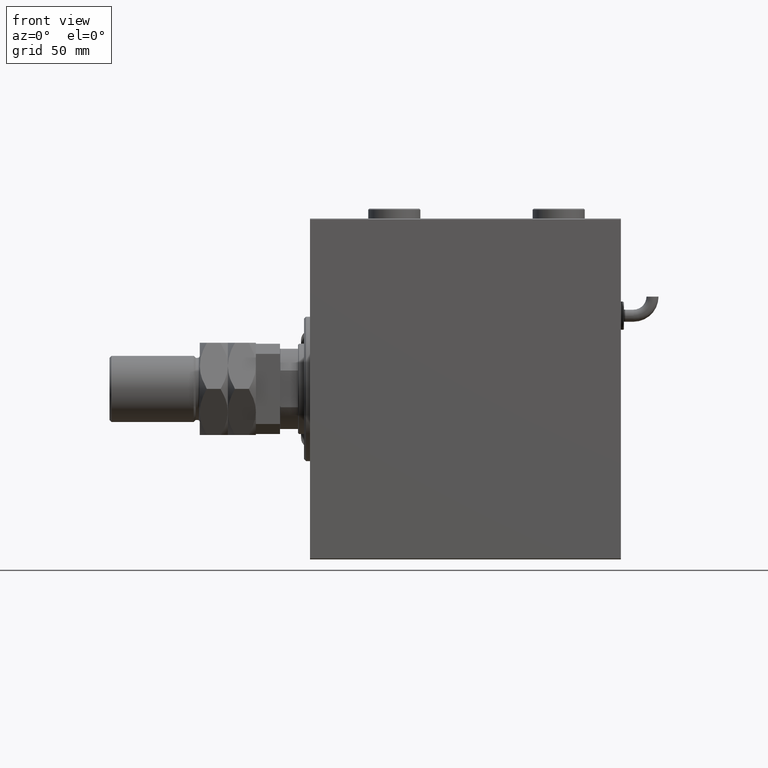
[diagram: clean part render]
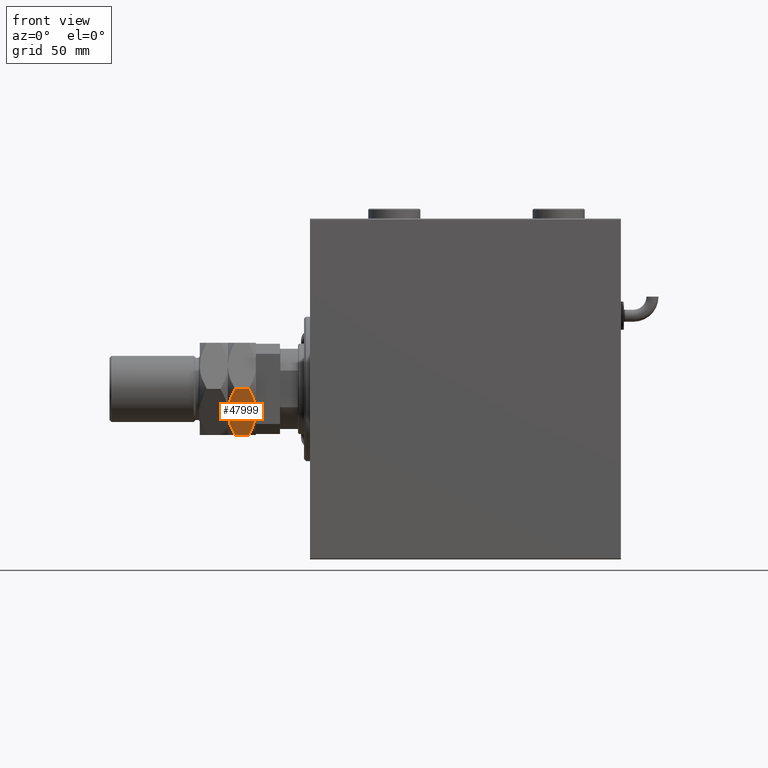
[diagram: same view with one face highlighted and labeled with its STEP entity id]
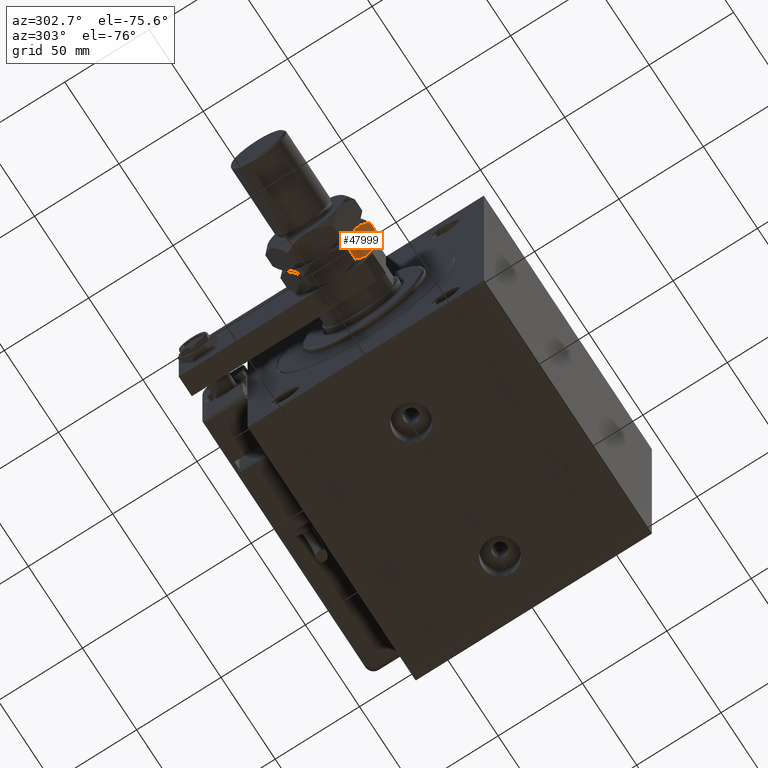
[diagram: same view with one face highlighted and labeled with its STEP entity id]
A machine part, front view. The second image highlights one B-rep face of the part: STEP entity #47999.
A second angle (auxiliary view) of the same face is appended — the face is thin or edge-on in the first view.
In plain terms, the highlighted planar face has unit normal (0, 0.866, 0.5).
Its self-contained STEP definition (entity closure, byte-faithful):
#112 = CARTESIAN_POINT ( 'NONE',  ( -3.738821091738284272E-15, -26.55811238272277919, 10.44188761727723680 ) ) ;
#1825 = ORIENTED_EDGE ( 'NONE', *, *, #31220, .F. ) ;
#2643 = CARTESIAN_POINT ( 'NONE',  ( -4.336808689942017736E-15, -26.55811238272277919, 14.00000000000000000 ) ) ;
#5033 = VECTOR ( 'NONE', #40968, 1000.000000000000000 ) ;
#5050 = CARTESIAN_POINT ( 'NONE',  ( -3.647547518302293401, -24.45219984114900313, 1.632211428131099540 ) ) ;
#5233 = EDGE_CURVE ( 'NONE', #39579, #5905, #60577, .T. ) ;
#5345 = CARTESIAN_POINT ( 'NONE',  ( -11.49999999999999467, -19.91858428704209416, 14.00000000000000000 ) ) ;
#5372 = CARTESIAN_POINT ( 'NONE',  ( -11.49999999999999289, -19.91858428704209061, 0.000000000000000000 ) ) ;
#5687 = CARTESIAN_POINT ( 'NONE',  ( -7.485235315951451085, -22.23650975811052888, 0.4351638361031562319 ) ) ;
#5905 = VERTEX_POINT ( 'NONE', #5345 ) ;
#8046 = CARTESIAN_POINT ( 'NONE',  ( -1.814388699413966632, -25.51057457870152234, 11.44392212070776260 ) ) ;
#9642 = ORIENTED_EDGE ( 'NONE', *, *, #43512, .F. ) ;
#9886 = PLANE ( 'NONE',  #32032 ) ;
#10172 = CARTESIAN_POINT ( 'NONE',  ( -9.475678885897350412, -21.08732662719550532, 0.1110987777879039046 ) ) ;
#10178 = CARTESIAN_POINT ( 'NONE',  ( -11.49999999999999467, -19.91858428704209416, 14.00000000000000000 ) ) ;
#11435 = CARTESIAN_POINT ( 'NONE',  ( -16.48674779066320895, -17.03948410772191124, 13.31372419864524481 ) ) ;
#11457 = EDGE_LOOP ( 'NONE', ( #13563, #16272, #1825, #13937, #30333, #9642 ) ) ;
#13485 = CARTESIAN_POINT ( 'NONE',  ( -3.676134192524339372, -24.43569531709166398, 12.30893151126141305 ) ) ;
#13563 = ORIENTED_EDGE ( 'NONE', *, *, #23466, .F. ) ;
#13937 = ORIENTED_EDGE ( 'NONE', *, *, #5233, .F. ) ;
#14406 = CARTESIAN_POINT ( 'NONE',  ( -22.09936078620807720, -13.79904048388689830, 3.038128090197237174 ) ) ;
#15603 = CARTESIAN_POINT ( 'NONE',  ( -15.51476468404853826, -17.60065881597367010, 13.56483616389684776 ) ) ;
#16272 = ORIENTED_EDGE ( 'NONE', *, *, #32144, .F. ) ;
#20392 = CARTESIAN_POINT ( 'NONE',  ( -23.00000000000000355, -13.27905619136139492, 10.44188761727722792 ) ) ;
#20704 = CARTESIAN_POINT ( 'NONE',  ( -12.51003418050899896, -19.33544078103450303, 13.97785245724466563 ) ) ;
#22743 = CARTESIAN_POINT ( 'NONE',  ( -3.738821091738284272E-15, -26.55811238272277919, 10.44188761727723680 ) ) ;
#22843 = VERTEX_POINT ( 'NONE', #57582 ) ;
#23466 = EDGE_CURVE ( 'NONE', #59356, #22843, #59572, .T. ) ;
#23855 = B_SPLINE_CURVE_WITH_KNOTS ( 'NONE', 3,
 ( #52746, #37446, #47633, #27839, #13485, #8046, #42214, #22743 ),
 .UNSPECIFIED., .F., .F.,
 ( 4, 2, 2, 4 ),
 ( 0.01376519981810311356, 0.02059946815584628999, 0.02401660232471787559, 0.02743373649358946814 ),
 .UNSPECIFIED. ) ;
#24842 = CARTESIAN_POINT ( 'NONE',  ( -4.401974839353477935E-15, -26.55811238272277919, 3.558112382722767197 ) ) ;
#27839 = CARTESIAN_POINT ( 'NONE',  ( -4.624867511207333415, -23.88794388016087211, 12.69215624893395855 ) ) ;
#28766 = CARTESIAN_POINT ( 'NONE',  ( -18.37513248879266925, -15.94922469392329489, 1.307843751066043225 ) ) ;
#29034 = FACE_OUTER_BOUND ( 'NONE', #11457, .T. ) ;
#29639 = CARTESIAN_POINT ( 'NONE',  ( -10.48996581949099216, -20.50172779304969595, 0.02214754275534232958 ) ) ;
#30333 = ORIENTED_EDGE ( 'NONE', *, *, #37066, .T. ) ;
#30861 = DIRECTION ( 'NONE',  ( -0.000000000000000000, -0.000000000000000000, -1.000000000000000000 ) ) ;
#31220 = EDGE_CURVE ( 'NONE', #5905, #45431, #23855, .T. ) ;
#32032 = AXIS2_PLACEMENT_3D ( 'NONE', #57776, #43402, #38946 ) ;
#32144 = EDGE_CURVE ( 'NONE', #45431, #59356, #46078, .T. ) ;
#33183 = CARTESIAN_POINT ( 'NONE',  ( -4.401974839353477935E-15, -26.55811238272277919, 3.558112382722767197 ) ) ;
#34439 = CARTESIAN_POINT ( 'NONE',  ( -8.974191784962716412, -21.37686033991523971, 0.1772566043169698236 ) ) ;
#35078 = CARTESIAN_POINT ( 'NONE',  ( -13.52432111410264426, -18.74984194688869721, 13.88890122221210177 ) ) ;
#37066 = EDGE_CURVE ( 'NONE', #39579, #47981, #59281, .T. ) ;
#37241 = B_SPLINE_CURVE_WITH_KNOTS ( 'NONE', 3,
 ( #48561, #47305, #53044, #28766, #42513, #48246, #14406, #47617 ),
 .UNSPECIFIED., .F., .F.,
 ( 4, 2, 2, 4 ),
 ( 0.01376519981810308754, 0.02059946815584627611, 0.02401660232471786866, 0.02743373649358946120 ),
 .UNSPECIFIED. ) ;
#37446 = CARTESIAN_POINT ( 'NONE',  ( -9.499688913091180353, -21.07346443153188886, 14.00000000000000178 ) ) ;
#38946 = DIRECTION ( 'NONE',  ( -0.8660254037844387076, 0.4999999999999997780, 0.000000000000000000 ) ) ;
#39264 = CARTESIAN_POINT ( 'NONE',  ( -23.00000000000000355, -13.27905619136139492, 3.558112382722778300 ) ) ;
#39579 = VERTEX_POINT ( 'NONE', #57256 ) ;
#39871 = CARTESIAN_POINT ( 'NONE',  ( -21.19663298550257480, -14.32023062262917890, 11.48306204854500479 ) ) ;
#40133 = CARTESIAN_POINT ( 'NONE',  ( -23.00000000000000355, -13.27905619136139492, 14.00000000000000000 ) ) ;
#40968 = DIRECTION ( 'NONE',  ( -0.000000000000000000, -0.000000000000000000, -1.000000000000000000 ) ) ;
#42214 = CARTESIAN_POINT ( 'NONE',  ( -0.9006392137919304597, -26.03812809019727581, 10.96187190980277393 ) ) ;
#42513 = CARTESIAN_POINT ( 'NONE',  ( -19.32386580747566640, -15.40147325699250658, 1.691068488738591613 ) ) ;
#43402 = DIRECTION ( 'NONE',  ( 0.4999999999999998335, 0.8660254037844388186, -0.000000000000000000 ) ) ;
#43512 = EDGE_CURVE ( 'NONE', #22843, #47981, #37241, .T. ) ;
#44004 = CARTESIAN_POINT ( 'NONE',  ( -6.513252209336787502, -22.79768446636226287, 0.6862758013547544111 ) ) ;
#45431 = VERTEX_POINT ( 'NONE', #112 ) ;
#46078 = LINE ( 'NONE', #2643, #5033 ) ;
#47305 = CARTESIAN_POINT ( 'NONE',  ( -13.50031108690881432, -18.76370414255229591, -1.445602896647339656E-16 ) ) ;
#47617 = CARTESIAN_POINT ( 'NONE',  ( -23.00000000000000355, -13.27905619136139492, 3.558112382722778300 ) ) ;
#47633 = CARTESIAN_POINT ( 'NONE',  ( -7.533391302902212594, -22.20870688608140853, 13.64682745090641980 ) ) ;
#47981 = VERTEX_POINT ( 'NONE', #39264 ) ;
#47999 = ADVANCED_FACE ( 'NONE', ( #29034 ), #9886, .F. ) ;
#48023 = VECTOR ( 'NONE', #30861, 1000.000000000000000 ) ;
#48246 = CARTESIAN_POINT ( 'NONE',  ( -21.18561130058604647, -14.32659399538266420, 2.556077879292248944 ) ) ;
#48561 = CARTESIAN_POINT ( 'NONE',  ( -11.49999999999999289, -19.91858428704209061, 0.000000000000000000 ) ) ;
#48803 = CARTESIAN_POINT ( 'NONE',  ( -1.803367014497429865, -25.51693795145499877, 2.516937951454992106 ) ) ;
#49117 = CARTESIAN_POINT ( 'NONE',  ( -10.99639501427889066, -20.20934076111341327, 5.166900978251220359E-17 ) ) ;
#52746 = CARTESIAN_POINT ( 'NONE',  ( -11.49999999999999467, -19.91858428704209416, 14.00000000000000000 ) ) ;
#53044 = CARTESIAN_POINT ( 'NONE',  ( -15.46660869709778474, -17.62846168800276914, 0.3531725490935845313 ) ) ;
#54861 = CARTESIAN_POINT ( 'NONE',  ( -14.02580821503727471, -18.46030823416895217, 13.82274339568303567 ) ) ;
#57256 = CARTESIAN_POINT ( 'NONE',  ( -23.00000000000000355, -13.27905619136139492, 10.44188761727722792 ) ) ;
#57582 = CARTESIAN_POINT ( 'NONE',  ( -11.49999999999999289, -19.91858428704209061, 0.000000000000000000 ) ) ;
#57776 = CARTESIAN_POINT ( 'NONE',  ( -23.00000000000000355, -13.27905619136139492, 14.00000000000000000 ) ) ;
#59281 = LINE ( 'NONE', #40133, #48023 ) ;
#59338 = CARTESIAN_POINT ( 'NONE',  ( -19.35245248169770704, -15.38496873293516742, 12.36778857186890157 ) ) ;
#59356 = VERTEX_POINT ( 'NONE', #33183 ) ;
#59572 = B_SPLINE_CURVE_WITH_KNOTS ( 'NONE', 3,
 ( #24842, #48803, #5050, #44004, #5687, #34439, #10172, #29639, #49117, #5372 ),
 .UNSPECIFIED., .F., .F.,
 ( 4, 2, 2, 2, 4 ),
 ( 2.544306848963294464E-07, 0.006882727124393996782, 0.01032396347124854216, 0.01204458164467581485, 0.01376519981810308754 ),
 .UNSPECIFIED. ) ;
#59649 = CARTESIAN_POINT ( 'NONE',  ( -12.00360498572110757, -19.62782781297077861, 14.00000000000000355 ) ) ;
#60577 = B_SPLINE_CURVE_WITH_KNOTS ( 'NONE', 3,
 ( #20392, #39871, #59338, #11435, #15603, #54861, #35078, #20704, #59649, #10178 ),
 .UNSPECIFIED., .F., .F.,
 ( 4, 2, 2, 2, 4 ),
 ( 2.544306848942777738E-07, 0.006882727124394008057, 0.01032396347124856124, 0.01204458164467583740, 0.01376519981810311356 ),
 .UNSPECIFIED. ) ;